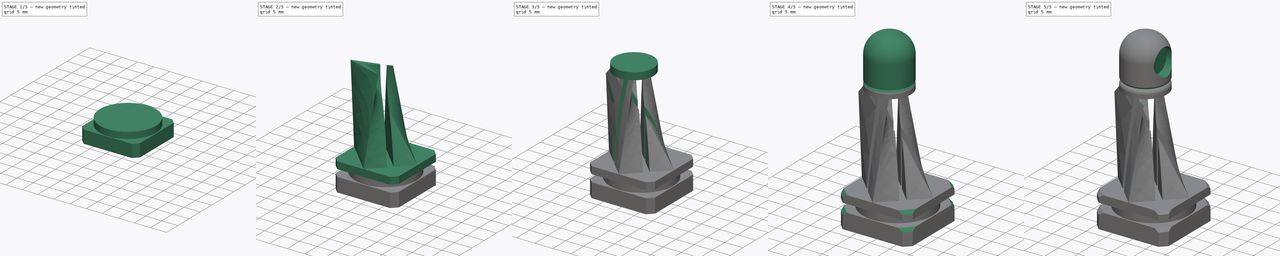
[diagram: build sequence overview — one tinted view per stage of 5, left to right]
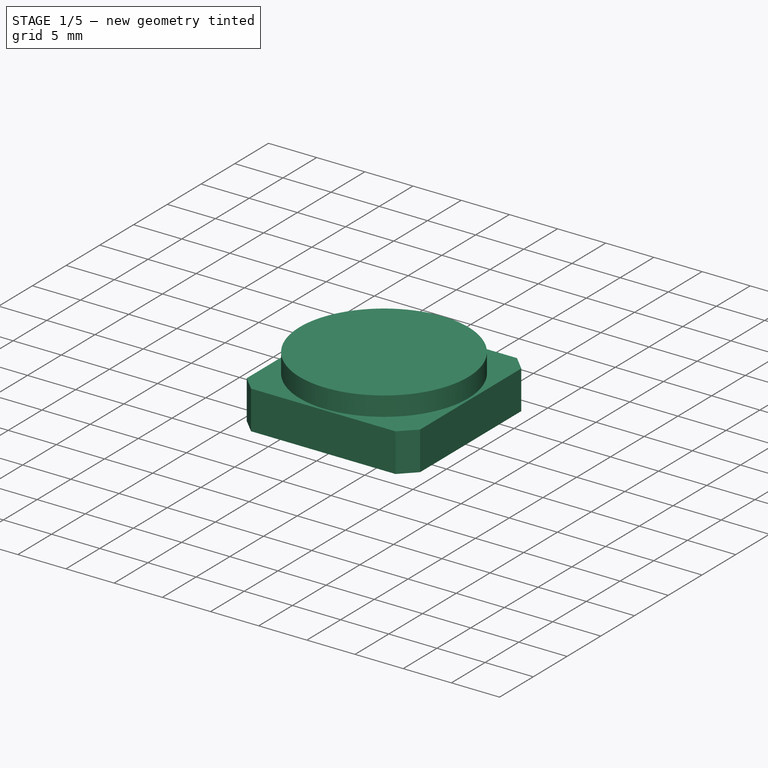
[diagram: stage 1 of 5 — iso view after this stage's code; geometry added in this stage tinted green]
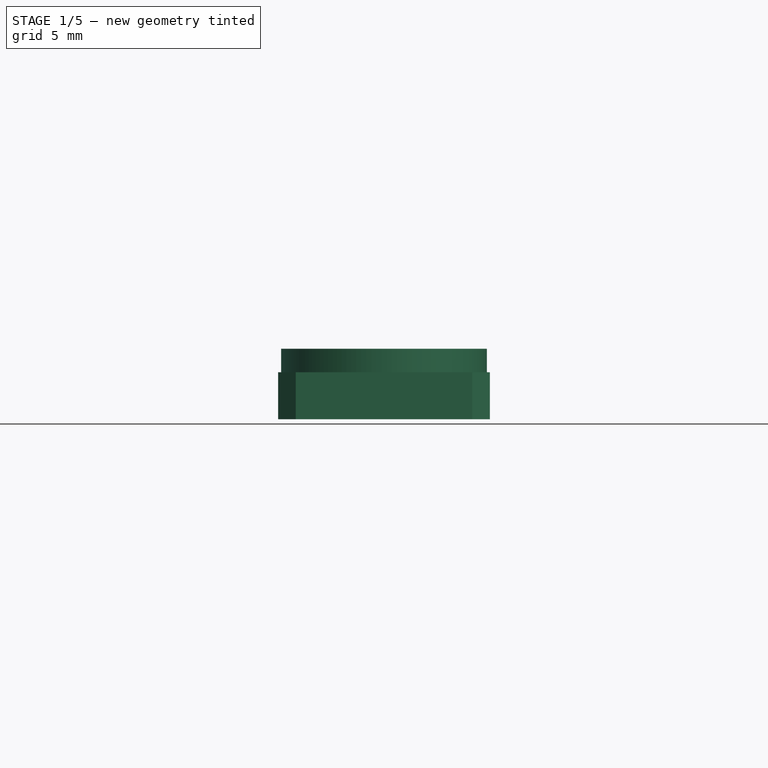
[diagram: stage 1 of 5 — front view after this stage's code; geometry added in this stage tinted green]
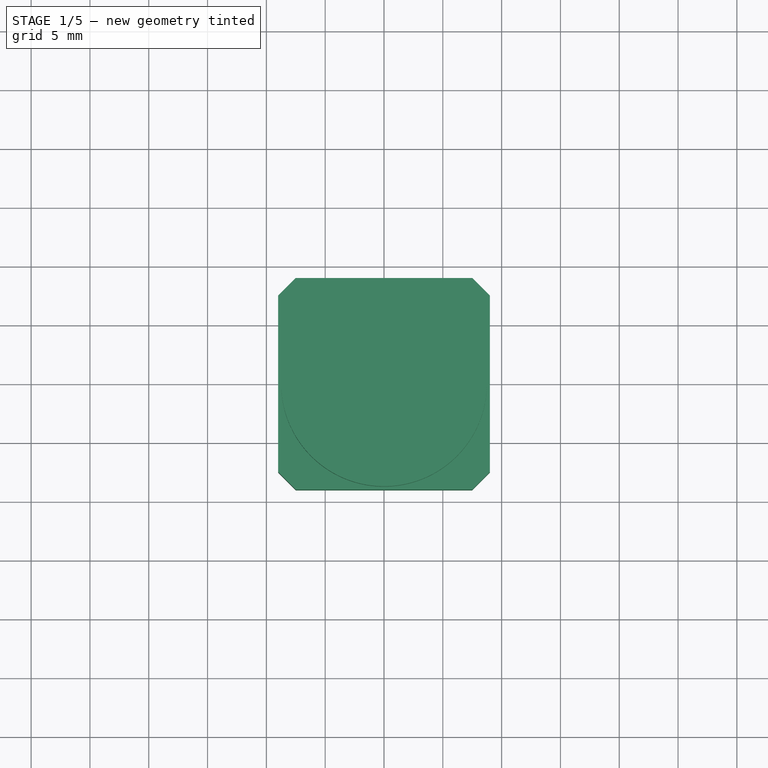
[diagram: stage 1 of 5 — top view after this stage's code; geometry added in this stage tinted green]
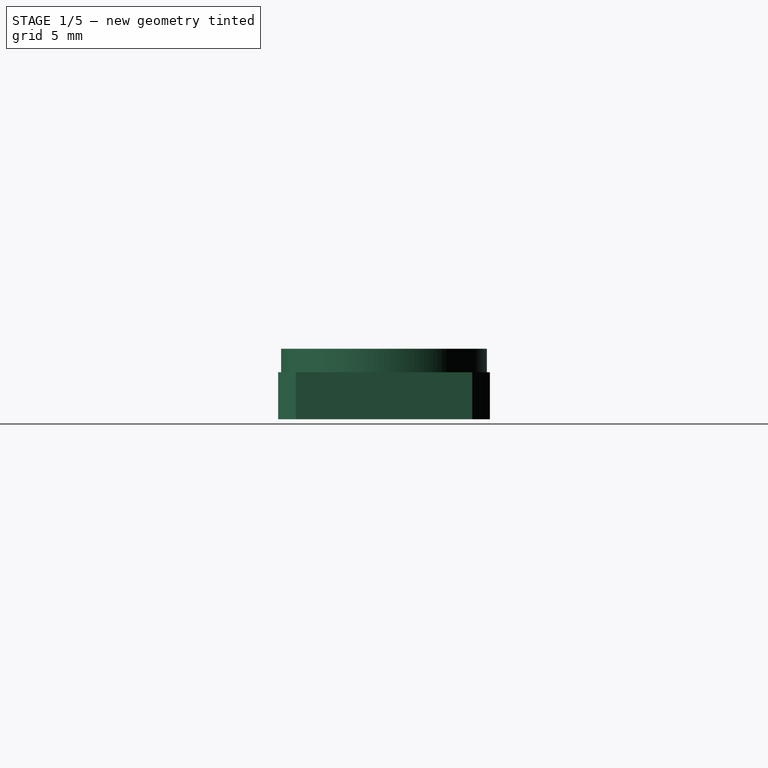
[diagram: stage 1 of 5 — right view after this stage's code; geometry added in this stage tinted green]
FCSTD DOCUMENT  (FreeCAD 0.21R33771 (Git))
Label: Pawn
License: All rights reserved
LicenseURL: http://en.wikipedia.org/wiki/All_rights_reserved
objects: Sketcher::SketchObject×11, PartDesign::Pad×5, PartDesign::Pocket×4, PartDesign::Chamfer×3, PartDesign::Fillet×3, Spreadsheet::Sheet×1, PartDesign::AdditiveLoft×1, PartDesign::Draft×1, PartDesign::Body×1, App::Part×1
note: 46 computed .brp shape members not serialized (recipe doc carries the construction recipe); baked Part::Feature solids carry a one-line shape summary decoded from their .brp

FEATURE [Spreadsheet::Sheet] Spreadsheet  label="p"
  cells = A1='base_hole; B1(base_hole)=16; A2='base_clearance; B2(base_clearance)=0.2; A3='base_depth; B3(base_depth)=4; A4='base_spacer_depth; B4(base_spacer_depth)=2; A5='base_chamfer; B5(base_chamfer)=1.5; A6='base_total_depth; B6(base_total_depth)==B3 + base_spacer_depth * 2; A8='body_height; B8(pawn_body_height)=30; A10='base_wall; B10(base_wall)=2; A12='loft_top; B12(loft_top)=2; A14='platform_diameter; B14(platform_diameter)=10.8; A15='platform_offset; B15(platform_offset)=2.09
FEATURE [Sketcher::SketchObject] Sketch
  FullyConstrained = true
  MapMode = 5
  Support = -> [XY_Plane001]
  expr: Constraints[10] = <<p>>.base_hole + Spreadsheet.base_wall
  expr: Constraints[11] = <<p>>.base_hole + Spreadsheet.base_wall
  expr: Constraints[1] = <<p>>.base_hole + <<p>>.base_clearance
  sketch-geometry (5):
    g0: Circle CenterX=0 CenterY=0 CenterZ=0 NormalX=0 NormalY=0 NormalZ=1 AngleXU=0 Radius=8.1
    g1: LineSegment StartX=-9 StartY=9 StartZ=0 EndX=9 EndY=9 EndZ=0
    g2: LineSegment StartX=9 StartY=9 StartZ=0 EndX=9 EndY=-9 EndZ=0
    g3: LineSegment StartX=9 StartY=-9 StartZ=0 EndX=-9 EndY=-9 EndZ=0
    g4: LineSegment StartX=-9 StartY=-9 StartZ=0 EndX=-9 EndY=9 EndZ=0
  constraints (13):
    c: Coincident(g0,g-1)
    c: Diameter(g0) = 16.2
    c: Coincident(g1,g2)
    c: Coincident(g2,g3)
    c: Coincident(g3,g4)
    c: Coincident(g4,g1)
    c: Horizontal(g1)
    c: Horizontal(g3)
    c: Vertical(g2)
    c: Vertical(g4)
    c: DistanceY(g4,g4) = 18
    c: DistanceX(g1,g1) = 18
    c: Symmetric(g1,g3,g0)
FEATURE [PartDesign::Pad] Pad  label="BasePad"
  Direction = (0,0,1)
  Length = 4
  Length2 = 10
  Profile = -> Sketch
  ReferenceAxis = -> Sketch [N_Axis]
  Type = 0
  expr: Length = <<p>>.base_depth
FEATURE [PartDesign::Chamfer] Chamfer  label="BasePadChamfer"
  Angle = 45
  Base = -> Pad [Edge8,Edge5,Edge2,Edge1]
  BaseFeature = -> Pad
  ChamferType = 0
  FlipDirection = false
  Size = 1.5
  Size2 = 1
  SupportTransform = false
  UseAllEdges = false
  expr: Size = <<p>>.base_chamfer
FEATURE [Sketcher::SketchObject] Sketch001
  FullyConstrained = true
  MapMode = 5
  Placement = pos=(0,0,4) rot=(0,0,1;0rad)
  Support = -> [Chamfer]
  expr: Constraints[1] = <<p>>.base_hole + 1.5
  sketch-geometry (1):
    g0: Circle CenterX=0 CenterY=0 CenterZ=0 NormalX=0 NormalY=0 NormalZ=1 AngleXU=0 Radius=8.75
  constraints (2):
    c: Coincident(g0,g-1)
    c: Diameter(g0) = 17.5
FEATURE [PartDesign::Pad] Pad001  label="BasePadTopper"
  BaseFeature = -> Chamfer
  Direction = (0,0,1)
  Length = 2
  Length2 = 10
  Profile = -> Sketch001
  ReferenceAxis = -> Sketch001 [N_Axis]
  Type = 0
  expr: Length = <<p>>.base_spacer_depth
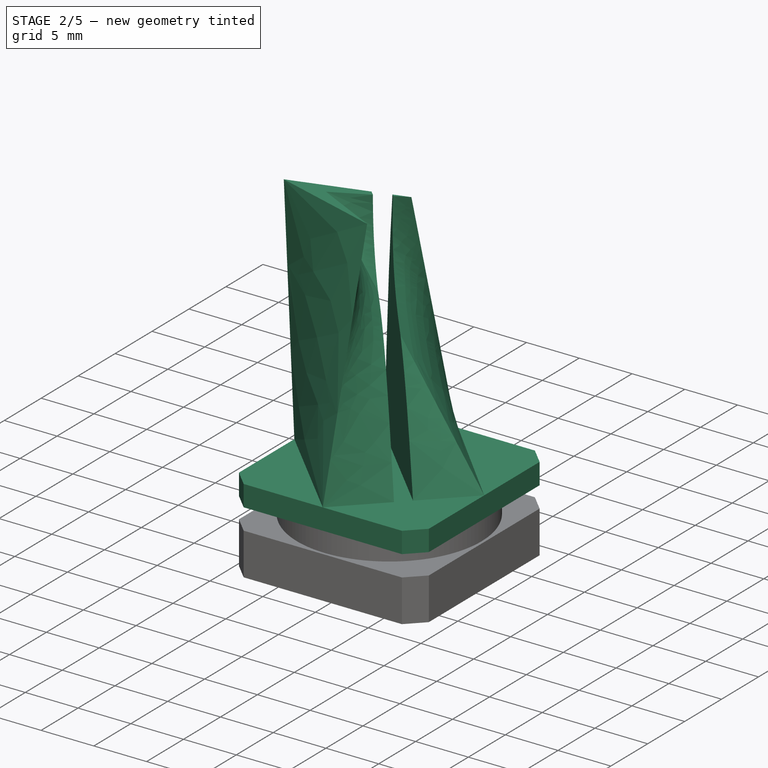
[diagram: stage 2 of 5 — iso view after this stage's code; geometry added in this stage tinted green]
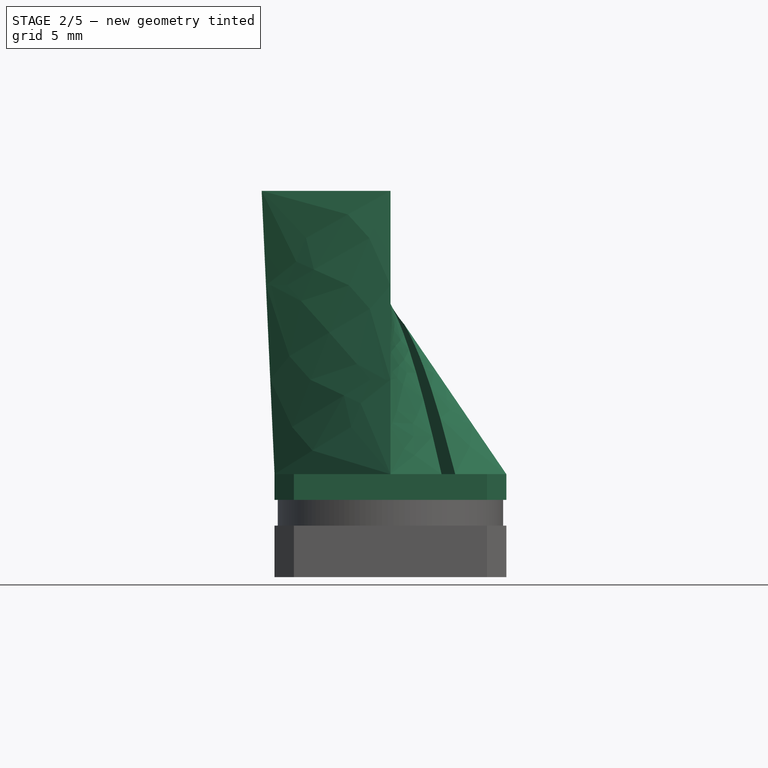
[diagram: stage 2 of 5 — front view after this stage's code; geometry added in this stage tinted green]
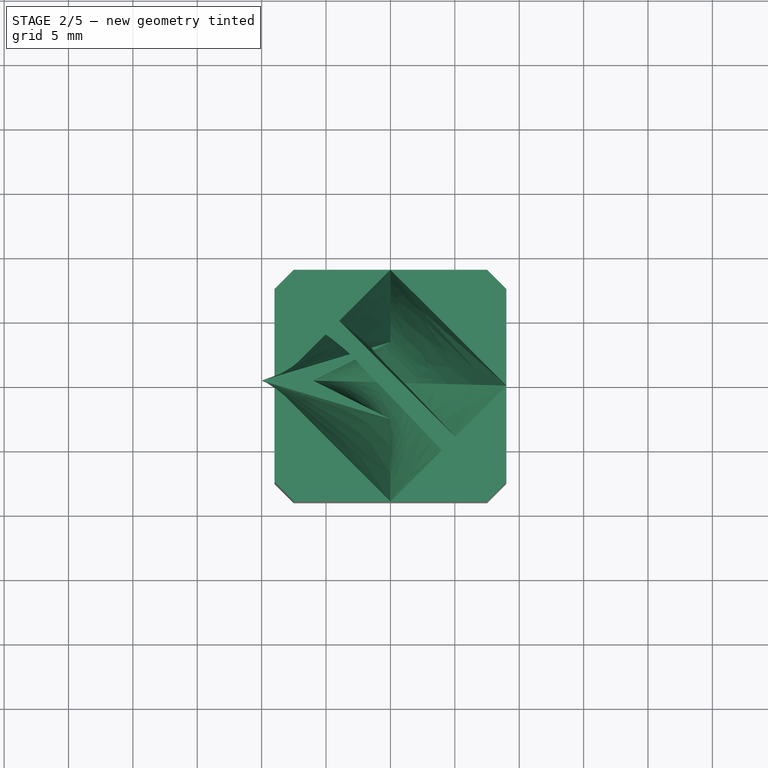
[diagram: stage 2 of 5 — top view after this stage's code; geometry added in this stage tinted green]
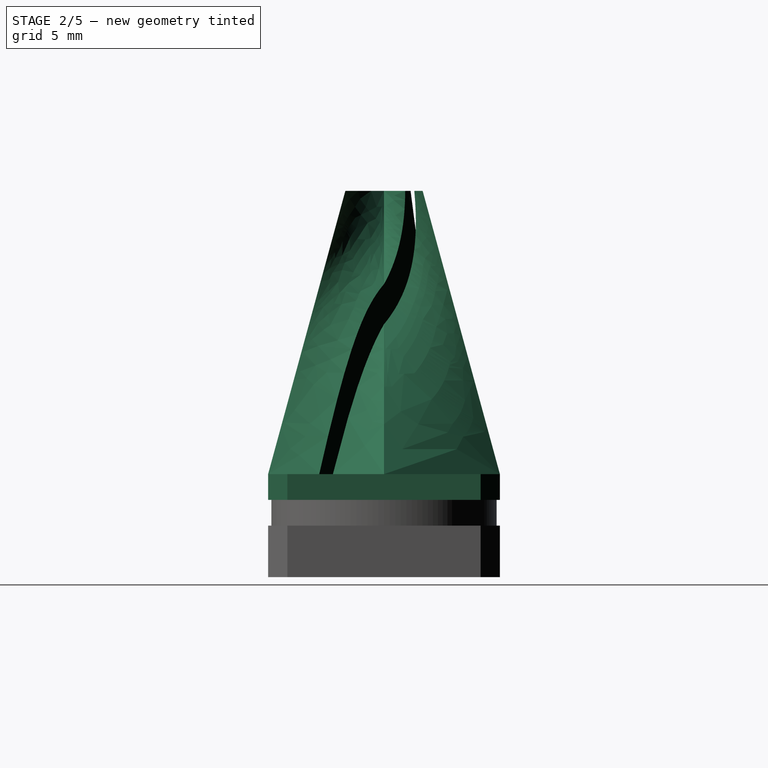
[diagram: stage 2 of 5 — right view after this stage's code; geometry added in this stage tinted green]
FEATURE [Sketcher::SketchObject] Sketch002
  FullyConstrained = true
  MapMode = 5
  Placement = pos=(0,0,6) rot=(0,0,1;0rad)
  Support = -> [Pad001]
  expr: Constraints[8] = <<p>>.base_hole + Spreadsheet.base_wall
  expr: Constraints[9] = <<p>>.base_hole + Spreadsheet.base_wall
  sketch-geometry (4):
    g0: LineSegment StartX=-9 StartY=9 StartZ=0 EndX=9 EndY=9 EndZ=0
    g1: LineSegment StartX=9 StartY=9 StartZ=0 EndX=9 EndY=-9 EndZ=0
    g2: LineSegment StartX=9 StartY=-9 StartZ=0 EndX=-9 EndY=-9 EndZ=0
    g3: LineSegment StartX=-9 StartY=-9 StartZ=0 EndX=-9 EndY=9 EndZ=0
  constraints (11):
    c: Coincident(g0,g1)
    c: Coincident(g1,g2)
    c: Coincident(g2,g3)
    c: Coincident(g3,g0)
    c: Horizontal(g0)
    c: Horizontal(g2)
    c: Vertical(g1)
    c: Vertical(g3)
    c: DistanceY(g3,g3) = 18
    c: DistanceX(g0,g0) = 18
    c: Symmetric(g0,g2,g-1)
FEATURE [PartDesign::Pad] Pad002  label="BaseBodyBase"
  BaseFeature = -> Pad001
  Direction = (0,0,1)
  Length = 2
  Length2 = 10
  Profile = -> Sketch002
  ReferenceAxis = -> Sketch002 [N_Axis]
  Type = 0
  expr: Length = <<p>>.base_spacer_depth
FEATURE [PartDesign::Chamfer] Chamfer001  label="BaseBodyBaseChamfer"
  Angle = 45
  Base = -> Pad002 [Edge8,Edge2,Edge1,Edge5]
  BaseFeature = -> Pad002
  ChamferType = 0
  FlipDirection = false
  Size = 1.5
  Size2 = 1
  SupportTransform = false
  UseAllEdges = false
  expr: Size = <<p>>.base_chamfer
FEATURE [Sketcher::SketchObject] Sketch003
  FullyConstrained = true
  MapMode = 5
  Placement = pos=(0,0,8) rot=(0,0,1;0rad)
  Support = -> [Chamfer001]
  expr: Constraints[10] = (<<p>>.base_hole + Spreadsheet.base_wall) / 2
  expr: Constraints[11] = <<p>>.base_hole + Spreadsheet.base_wall
  expr: Constraints[8] = (<<p>>.base_hole + Spreadsheet.base_wall) / 2
  expr: Constraints[9] = <<p>>.base_hole + Spreadsheet.base_wall
  sketch-geometry (4):
    g0: LineSegment StartX=0 StartY=9 StartZ=0 EndX=-9 EndY=0 EndZ=0
    g1: LineSegment StartX=-9 StartY=0 StartZ=0 EndX=0 EndY=-9 EndZ=0
    g2: LineSegment StartX=0 StartY=-9 StartZ=0 EndX=9 EndY=0 EndZ=0
    g3: LineSegment StartX=9 StartY=0 StartZ=0 EndX=0 EndY=9 EndZ=0
  constraints (12):
    c: PointOnObject(g0,g-2)
    c: PointOnObject(g0,g-1)
    c: Coincident(g0,g1)
    c: PointOnObject(g1,g-2)
    c: Coincident(g1,g2)
    c: PointOnObject(g2,g-1)
    c: Coincident(g2,g3)
    c: Coincident(g3,g0)
    c: DistanceX(g0,g-1) = 9
    c: DistanceX(g0,g2) = 18
    c: DistanceY(g-1,g0) = 9
    c: DistanceY(g1,g0) = 18
FEATURE [Sketcher::SketchObject] Sketch004
  FullyConstrained = true
  MapMode = 5
  Placement = pos=(0,0,30) rot=(0,0,1;0rad)
  expr: .Placement.Base.z = <<p>>.pawn_body_height
  expr: Constraints[10] = <<p>>.loft_top * 3
  expr: Constraints[11] = <<p>>.loft_top * 3 / 2
  expr: Constraints[8] = <<p>>.loft_top * 2
  expr: Constraints[9] = <<p>>.loft_top * 3
  sketch-geometry (4):
    g0: LineSegment StartX=0 StartY=3 StartZ=0 EndX=-10 EndY=0 EndZ=0
    g1: LineSegment StartX=-10 StartY=0 StartZ=0 EndX=0 EndY=-3 EndZ=0
    g2: LineSegment StartX=0 StartY=-3 StartZ=0 EndX=-6 EndY=0 EndZ=0
    g3: LineSegment StartX=-6 StartY=0 StartZ=0 EndX=0 EndY=3 EndZ=0
  constraints (12):
    c: PointOnObject(g0,g-2)
    c: PointOnObject(g0,g-1)
    c: Coincident(g0,g1)
    c: PointOnObject(g1,g-2)
    c: Coincident(g1,g2)
    c: PointOnObject(g2,g-1)
    c: Coincident(g2,g3)
    c: Coincident(g3,g0)
    c: DistanceX(g0,g2) = 4
    c: DistanceY(g1,g0) = 6
    c: DistanceX(g2,g-1) = 6
    c: DistanceY(g-1,g0) = 3
FEATURE [PartDesign::AdditiveLoft] AdditiveLoft
  BaseFeature = -> Chamfer001
  Closed = false
  Profile = -> Sketch003
  Ruled = false
  Sections = -> [Sketch004]
FEATURE [Sketcher::SketchObject] Sketch005
  FullyConstrained = true
  MapMode = 5
  Placement = pos=(-8.25,8.25,0) rot=(-0.281085,0.678598,0.678598;3.68962rad)
  Support = -> [AdditiveLoft]
  expr: Constraints[10] = <<p>>.base_total_depth
  expr: Constraints[11] = <<p>>.pawn_body_height - <<p>>.base_total_depth
  expr: Constraints[8] = <<p>>.base_chamfer
  expr: Constraints[9] = <<p>>.base_chamfer / 2
  sketch-geometry (4):
    g0: LineSegment StartX=-0.75 StartY=30 StartZ=0 EndX=0.75 EndY=30 EndZ=0
    g1: LineSegment StartX=0.75 StartY=30 StartZ=0 EndX=0.75 EndY=8 EndZ=0
    g2: LineSegment StartX=0.75 StartY=8 StartZ=0 EndX=-0.75 EndY=8 EndZ=0
    g3: LineSegment StartX=-0.75 StartY=8 StartZ=0 EndX=-0.75 EndY=30 EndZ=0
  constraints (12):
    c: Coincident(g0,g1)
    c: Coincident(g1,g2)
    c: Coincident(g2,g3)
    c: Coincident(g3,g0)
    c: Horizontal(g0)
    c: Horizontal(g2)
    c: Vertical(g1)
    c: Vertical(g3)
    c: DistanceX(g2,g2) = 1.5
    c: DistanceX(g2,g-1) = 0.75
    c: DistanceY(g-1,g2) = 8
    c: DistanceY(g1,g1) = 22
FEATURE [PartDesign::Pocket] Pocket  label="SidePocket1"
  BaseFeature = -> AdditiveLoft
  Direction = (0.707107,-0.707107,0)
  Length = 5
  Length2 = 5
  Profile = -> Sketch005
  ReferenceAxis = -> Sketch005 [N_Axis]
  Type = 1
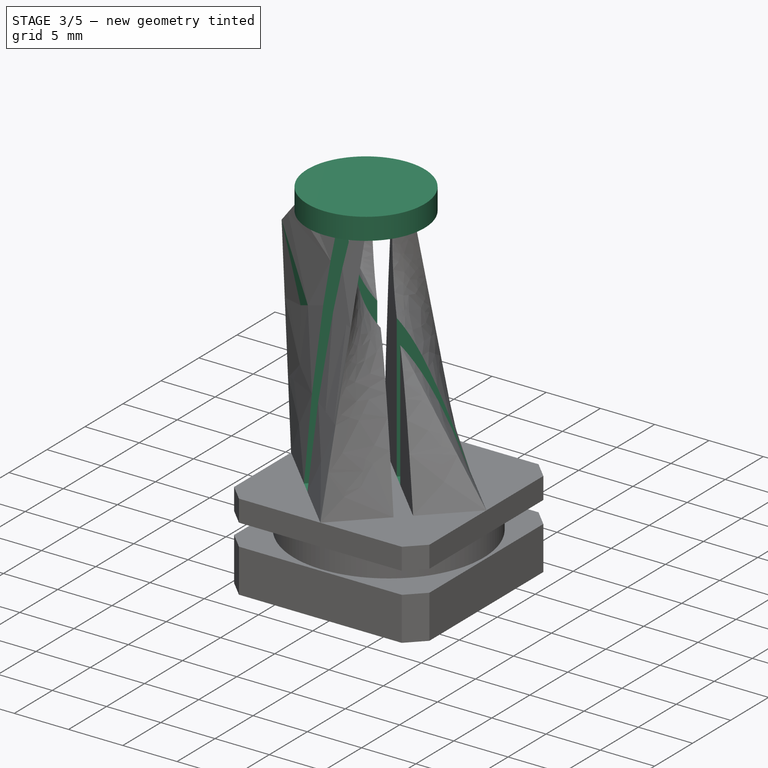
[diagram: stage 3 of 5 — iso view after this stage's code; geometry added in this stage tinted green]
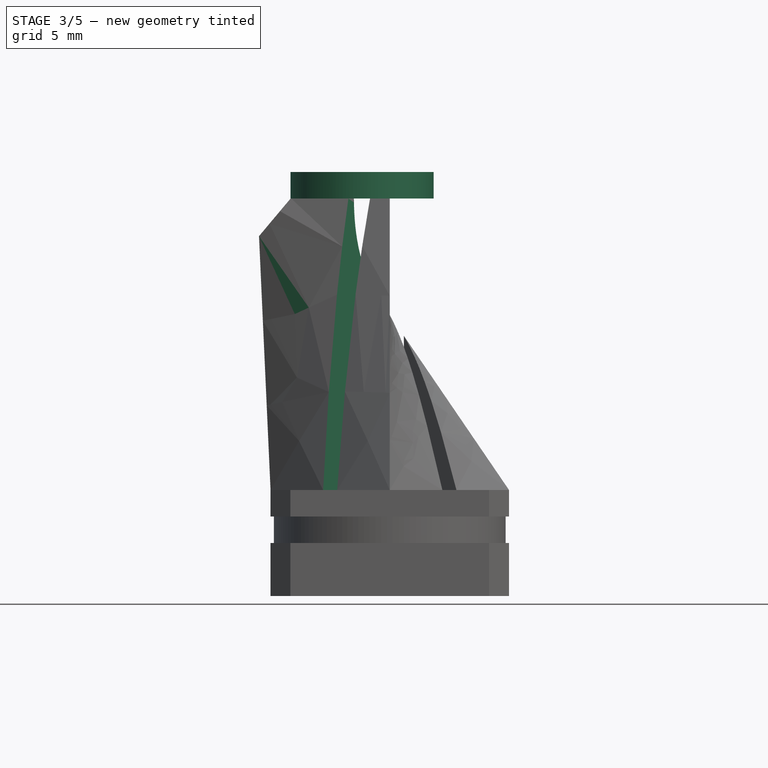
[diagram: stage 3 of 5 — front view after this stage's code; geometry added in this stage tinted green]
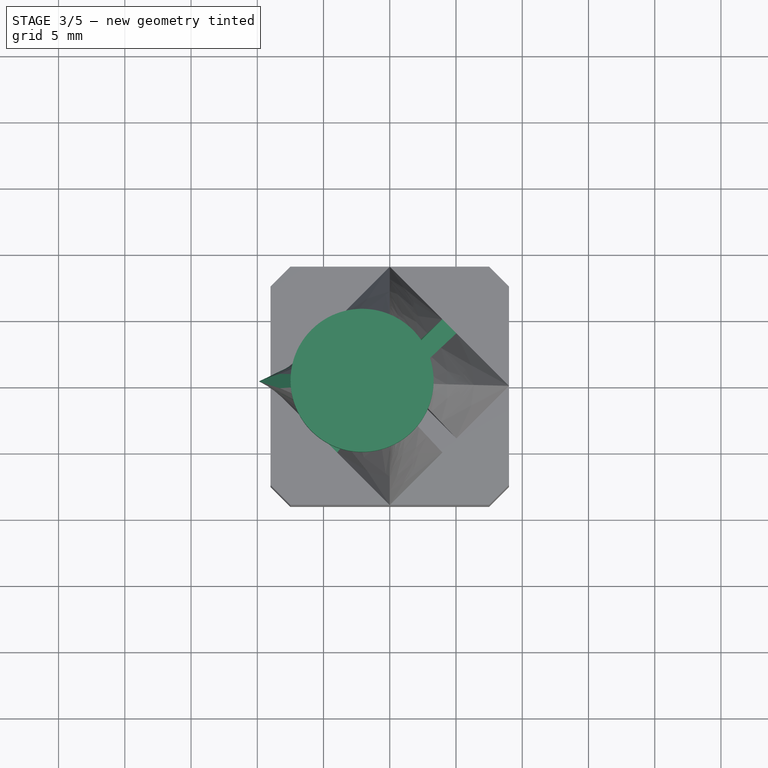
[diagram: stage 3 of 5 — top view after this stage's code; geometry added in this stage tinted green]
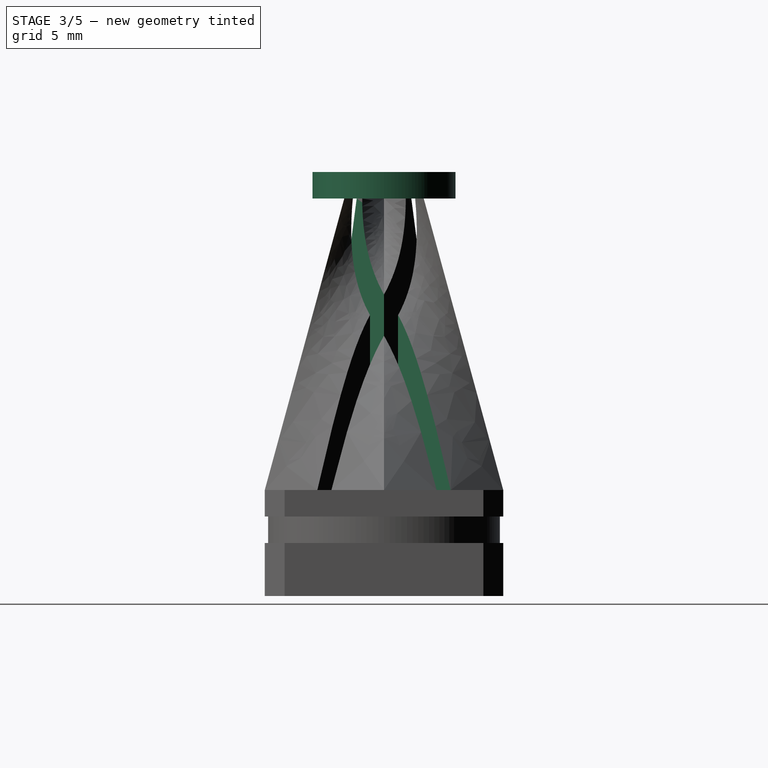
[diagram: stage 3 of 5 — right view after this stage's code; geometry added in this stage tinted green]
FEATURE [Sketcher::SketchObject] Sketch006
  FullyConstrained = true
  MapMode = 5
  Placement = pos=(-8.25,-8.25,0) rot=(0.862856,-0.357407,-0.357407;1.71777rad)
  Support = -> [AdditiveLoft]
  expr: Constraints[10] = <<p>>.base_total_depth
  expr: Constraints[11] = <<p>>.pawn_body_height - <<p>>.base_total_depth
  expr: Constraints[8] = <<p>>.base_chamfer
  expr: Constraints[9] = <<p>>.base_chamfer / 2
  sketch-geometry (4):
    g0: LineSegment StartX=-0.75 StartY=30 StartZ=0 EndX=0.75 EndY=30 EndZ=0
    g1: LineSegment StartX=0.75 StartY=30 StartZ=0 EndX=0.75 EndY=8 EndZ=0
    g2: LineSegment StartX=0.75 StartY=8 StartZ=0 EndX=-0.75 EndY=8 EndZ=0
    g3: LineSegment StartX=-0.75 StartY=8 StartZ=0 EndX=-0.75 EndY=30 EndZ=0
  constraints (12):
    c: Coincident(g0,g1)
    c: Coincident(g1,g2)
    c: Coincident(g2,g3)
    c: Coincident(g3,g0)
    c: Horizontal(g0)
    c: Horizontal(g2)
    c: Vertical(g1)
    c: Vertical(g3)
    c: DistanceX(g2,g2) = 1.5
    c: DistanceX(g2,g-1) = 0.75
    c: DistanceY(g-1,g2) = 8
    c: DistanceY(g1,g1) = 22
FEATURE [PartDesign::Pocket] Pocket001  label="SidePocket2"
  BaseFeature = -> Pocket
  Direction = (0.707107,0.707107,0)
  Length = 5
  Length2 = 5
  Profile = -> Sketch006
  ReferenceAxis = -> Sketch006 [N_Axis]
  Type = 1
FEATURE [Sketcher::SketchObject] Sketch007
  FullyConstrained = true
  MapMode = 5
  Placement = pos=(0,0,30) rot=(0,0,1;0rad)
  Support = -> [Pocket001]
  expr: Constraints[1] = <<p>>.platform_diameter
  expr: Constraints[2] = <<p>>.platform_offset
  sketch-geometry (1):
    g0: Circle CenterX=-2.09 CenterY=0 CenterZ=0 NormalX=0 NormalY=0 NormalZ=1 AngleXU=0 Radius=5.4
  constraints (3):
    c: PointOnObject(g0,g-1)
    c: Diameter(g0) = 10.8
    c: DistanceX(g0,g-1) = 2.09
FEATURE [PartDesign::Pad] Pad003  label="PlatformPad"
  BaseFeature = -> Pocket001
  Direction = (0,0,1)
  Length = 2
  Length2 = 10
  Profile = -> Sketch007
  ReferenceAxis = -> Sketch007 [N_Axis]
  Type = 0
FEATURE [PartDesign::Draft] Draft  label="RearDraft"
  Angle = 50
  Base = -> Pad003 [Face49]
  BaseFeature = -> Pad003
  SupportTransform = false
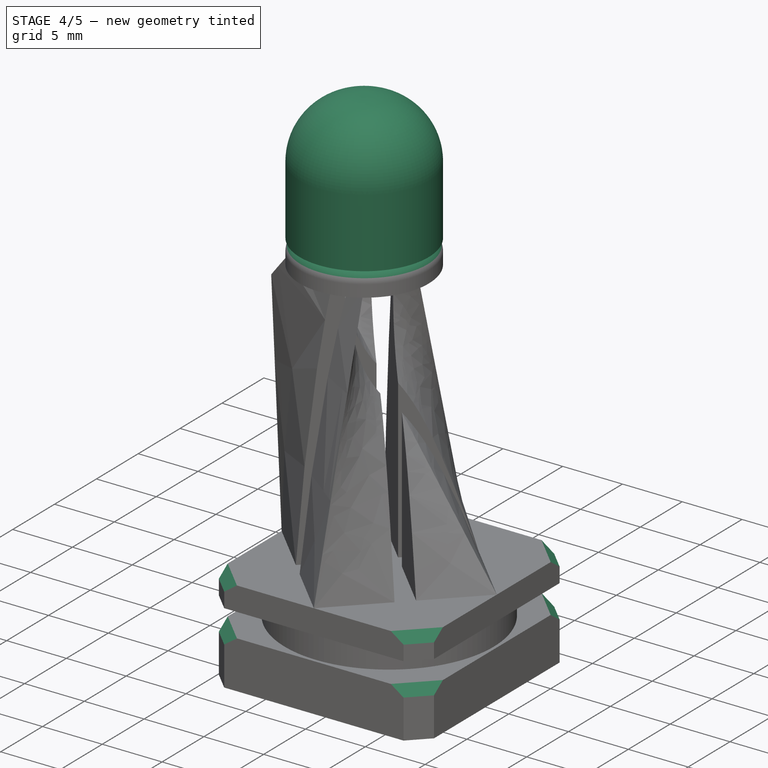
[diagram: stage 4 of 5 — iso view after this stage's code; geometry added in this stage tinted green]
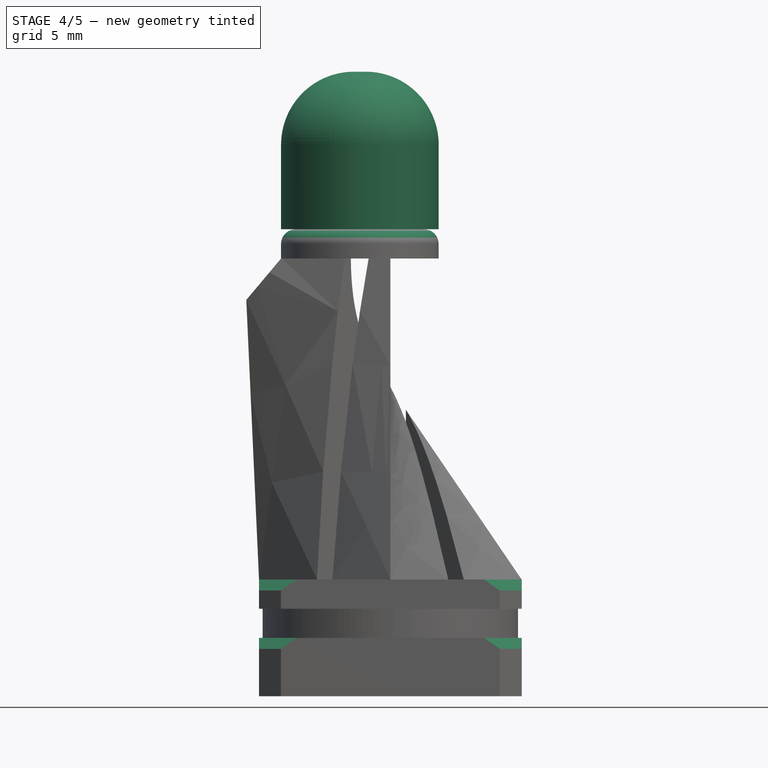
[diagram: stage 4 of 5 — front view after this stage's code; geometry added in this stage tinted green]
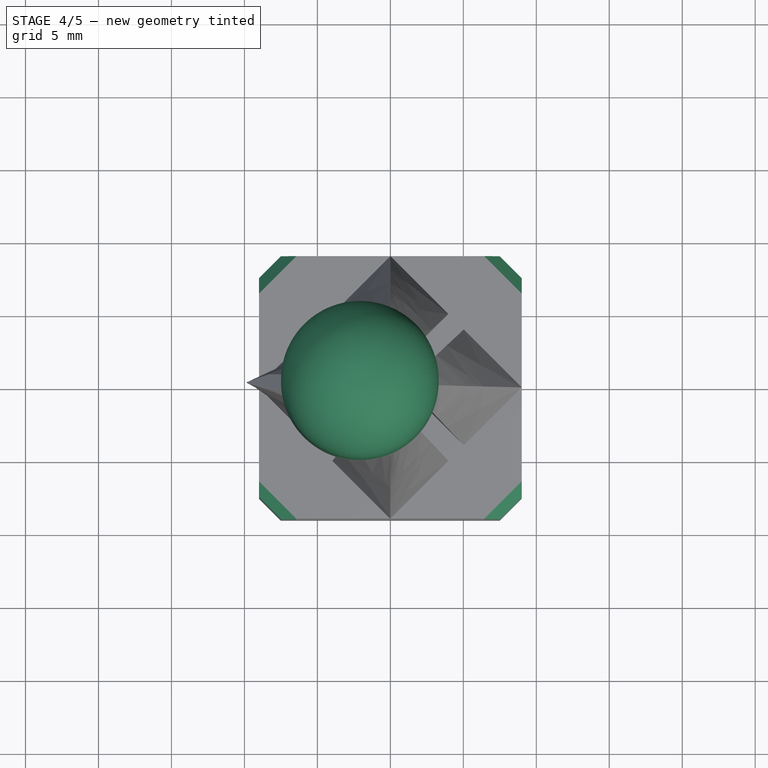
[diagram: stage 4 of 5 — top view after this stage's code; geometry added in this stage tinted green]
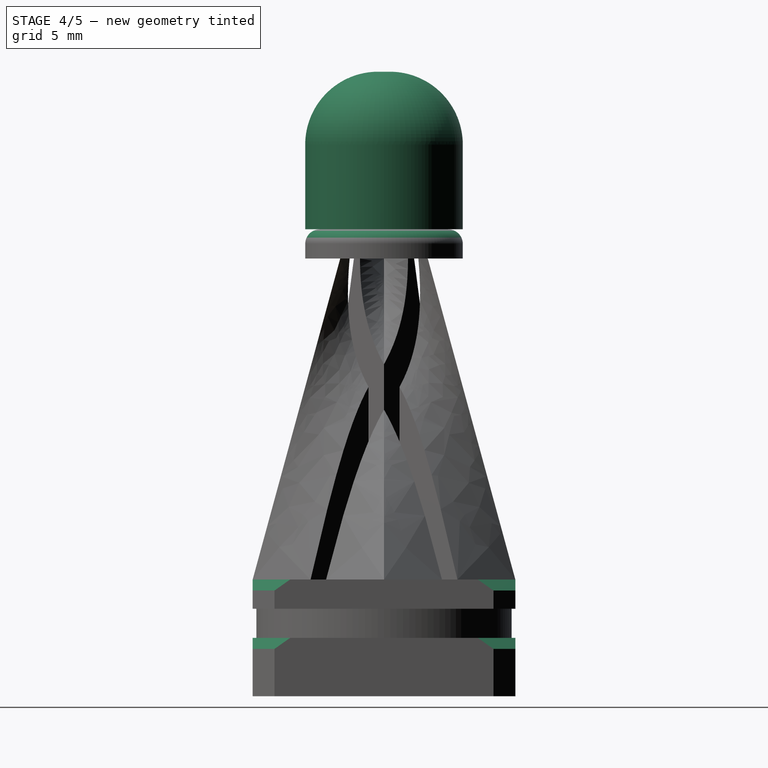
[diagram: stage 4 of 5 — right view after this stage's code; geometry added in this stage tinted green]
FEATURE [PartDesign::Chamfer] Chamfer002  label="BaseChamfers"
  Angle = 45
  Base = -> Draft [Edge34,Edge38,Edge20,Edge16,Edge67,Edge71,Edge72,Edge68]
  BaseFeature = -> Draft
  ChamferType = 0
  FlipDirection = false
  Size = 0.75
  Size2 = 1
  SupportTransform = false
  UseAllEdges = false
FEATURE [PartDesign::Fillet] Fillet  label="PlatformChamfer"
  Base = -> Chamfer002 [Edge159]
  BaseFeature = -> Chamfer002
  Radius = 1
  SupportTransform = false
  UseAllEdges = false
FEATURE [Sketcher::SketchObject] Sketch008
  FullyConstrained = true
  MapMode = 5
  Placement = pos=(0,0,32) rot=(0,0,1;0rad)
  Support = -> [Fillet]
  expr: Constraints[1] = <<p>>.platform_diameter
  expr: Constraints[2] = <<p>>.platform_offset
  sketch-geometry (1):
    g0: Circle CenterX=-2.09 CenterY=0 CenterZ=0 NormalX=0 NormalY=0 NormalZ=1 AngleXU=0 Radius=5.4
  constraints (3):
    c: PointOnObject(g0,g-1)
    c: Diameter(g0) = 10.8
    c: DistanceX(g0,g-1) = 2.09
FEATURE [PartDesign::Pad] Pad004  label="PawnPad"
  BaseFeature = -> Fillet
  Direction = (0,0,1)
  Length = 10.8
  Length2 = 10
  Profile = -> Sketch008
  ReferenceAxis = -> Sketch008 [N_Axis]
  Type = 0
  expr: Length = <<p>>.platform_diameter
FEATURE [PartDesign::Fillet] Fillet001  label="TopFillet"
  Base = -> Pad004 [Edge3]
  BaseFeature = -> Pad004
  Radius = 5
  SupportTransform = false
  UseAllEdges = false
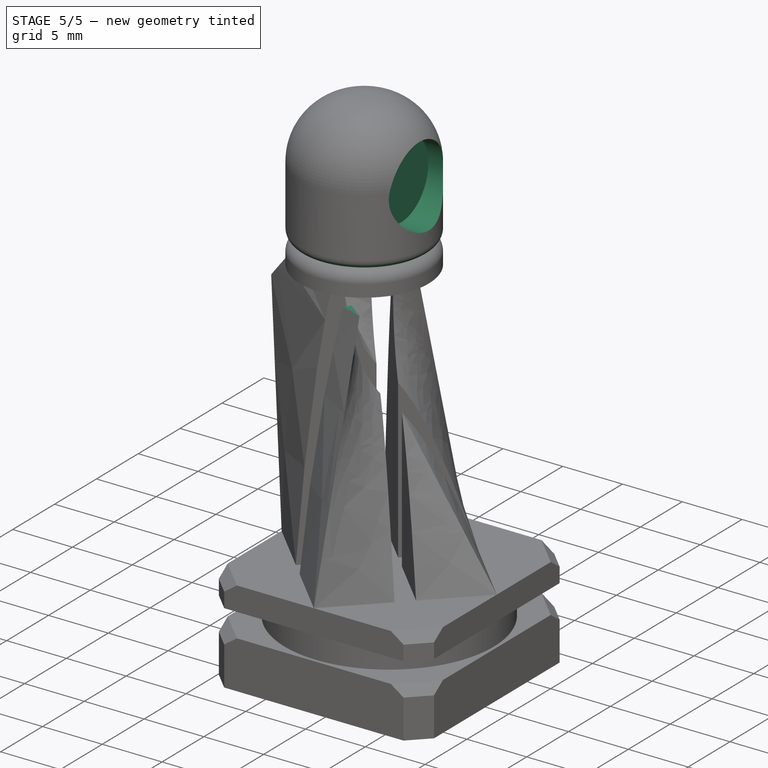
[diagram: stage 5 of 5 — iso view after this stage's code; geometry added in this stage tinted green]
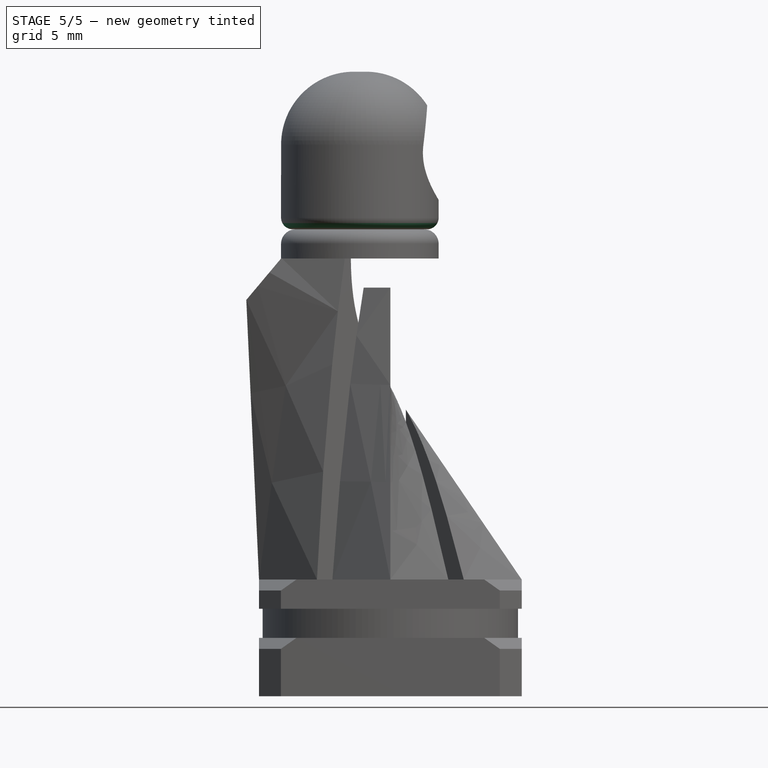
[diagram: stage 5 of 5 — front view after this stage's code; geometry added in this stage tinted green]
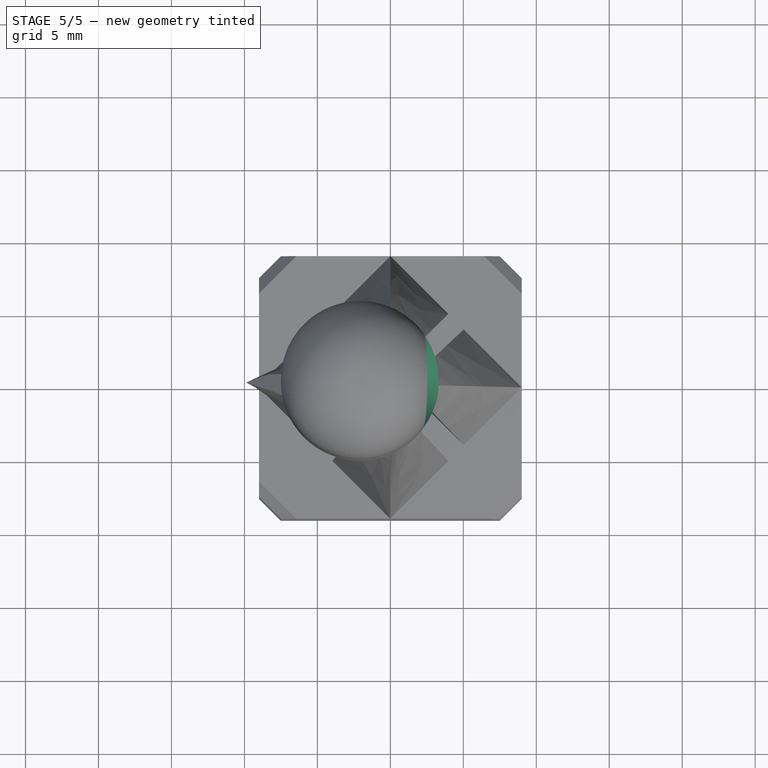
[diagram: stage 5 of 5 — top view after this stage's code; geometry added in this stage tinted green]
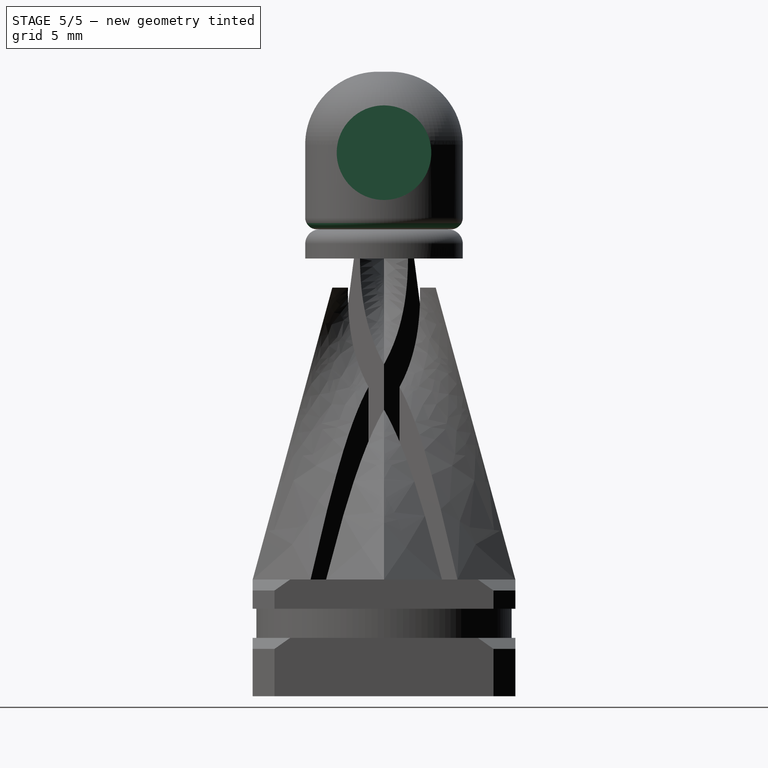
[diagram: stage 5 of 5 — right view after this stage's code; geometry added in this stage tinted green]
FEATURE [PartDesign::Fillet] Fillet002  label="BottomFillet"
  Base = -> Fillet001 [Edge3]
  BaseFeature = -> Fillet001
  Radius = 0.8
  SupportTransform = false
  UseAllEdges = false
FEATURE [Sketcher::SketchObject] Sketch009
  FullyConstrained = true
  MapMode = 5
  Placement = pos=(9,0,0) rot=(0.57735,0.57735,0.57735;2.0944rad)
  Support = -> [Fillet002]
  sketch-geometry (1):
    g0: Circle CenterX=0 CenterY=37.25 CenterZ=0 NormalX=0 NormalY=0 NormalZ=1 AngleXU=0 Radius=3.2395
  constraints (3):
    c: PointOnObject(g0,g-2)
    c: Diameter(g0) = 6.479
    c: DistanceY(g-1,g0) = 37.25
FEATURE [PartDesign::Pocket] Pocket002  label="FacePocket"
  BaseFeature = -> Fillet002
  Direction = (-1,0,0)
  Length = 8
  Length2 = 5
  Profile = -> Sketch009
  ReferenceAxis = -> Sketch009 [N_Axis]
  Type = 0
FEATURE [Sketcher::SketchObject] Sketch010
  FullyConstrained = false
  MapMode = 5
  Placement = pos=(0,-9,0) rot=(1,0,0;1.5708rad)
  Support = -> [Fillet001]
  expr: Constraints[8] = <<p>>.pawn_body_height
  sketch-geometry (4):
    g0: LineSegment StartX=0.546696 StartY=28 StartZ=0 EndX=-1.9533 EndY=28 EndZ=0
    g1: LineSegment StartX=-1.9533 StartY=28 StartZ=0 EndX=-1.9533 EndY=30 EndZ=0
    g2: LineSegment StartX=-1.9533 StartY=30 StartZ=0 EndX=0.546696 EndY=30 EndZ=0
    g3: LineSegment StartX=0.546696 StartY=30 StartZ=0 EndX=0.546696 EndY=28 EndZ=0
  constraints (11):
    c: Coincident(g0,g1)
    c: Coincident(g1,g2)
    c: Coincident(g2,g3)
    c: Coincident(g3,g0)
    c: Horizontal(g0)
    c: Horizontal(g2)
    c: Vertical(g1)
    c: Vertical(g3)
    c: DistanceY(g-1,g1) = 30
    c: DistanceX(g2,g2) = 2.5
    c: DistanceY(g3,g3) = 2
FEATURE [PartDesign::Pocket] Pocket003
  BaseFeature = -> Pocket002
  Direction = (0,1,-2e-16)
  Length = 5
  Length2 = 5
  Profile = -> Sketch010
  ReferenceAxis = -> Sketch010 [N_Axis]
  Type = 1
FEATURE [PartDesign::Body] Body  label="PawnBody"
  Group = -> [Sketch,Pad,Chamfer,Sketch001,Pad001,Sketch002,Pad002,Chamfer001,Sketch003,Sketch004,AdditiveLoft,Sketch005,Pocket,Sketch006,Pocket001,Sketch007,Pad003,Draft,Chamfer002,Fillet,Sketch008,Pad004,Fillet001,Fillet002,Sketch009,Pocket002,Sketch010,Pocket003]
  Origin = -> Origin001
  Tip = -> Pocket003
FEATURE [App::Part] Part  label="PawnPart"
  Group = -> [Body]
  Origin = -> Origin
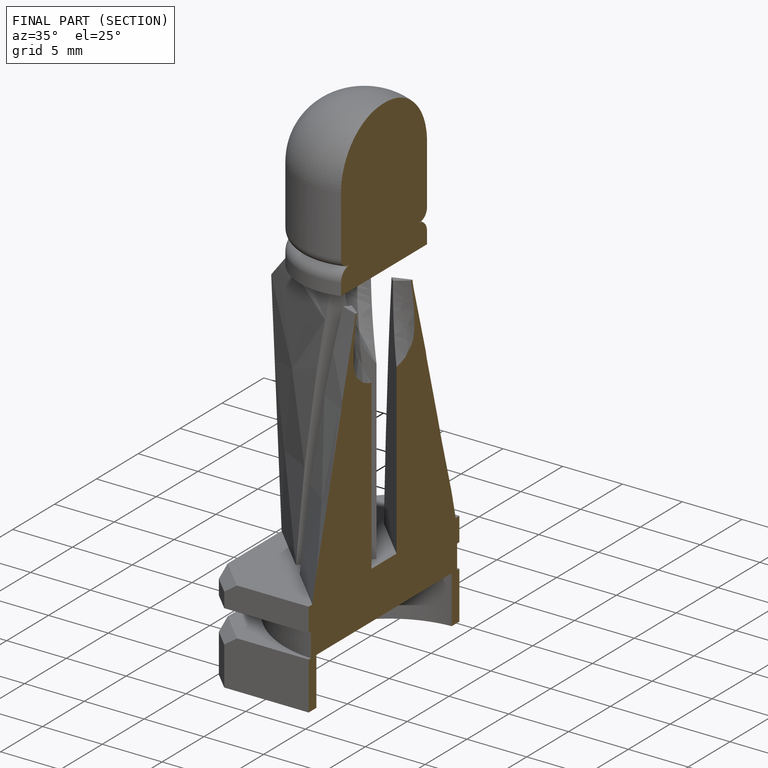
[diagram: finished part — half-section view (interior)]
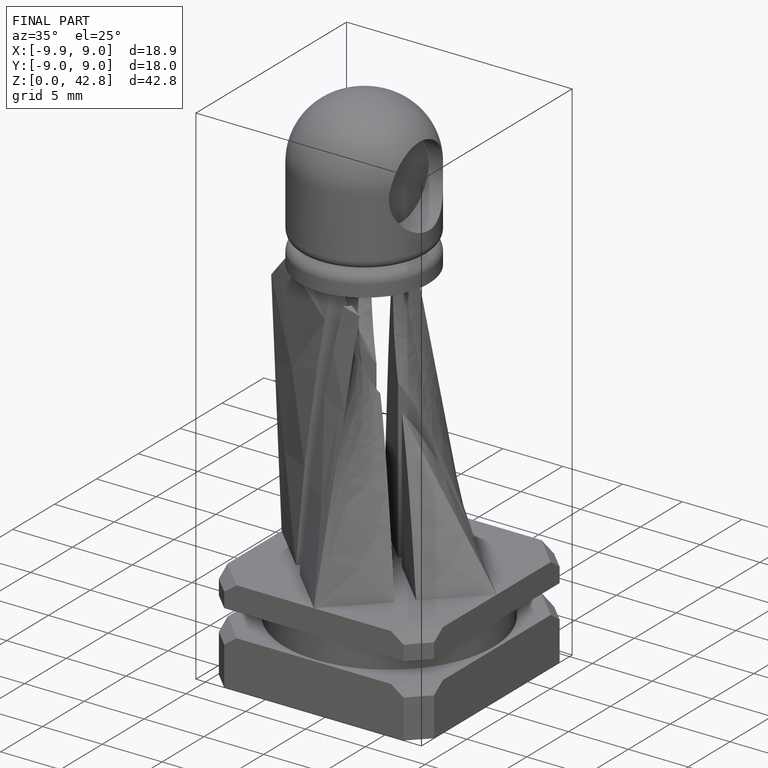
[diagram: finished part — iso view with bounding-box wireframe]
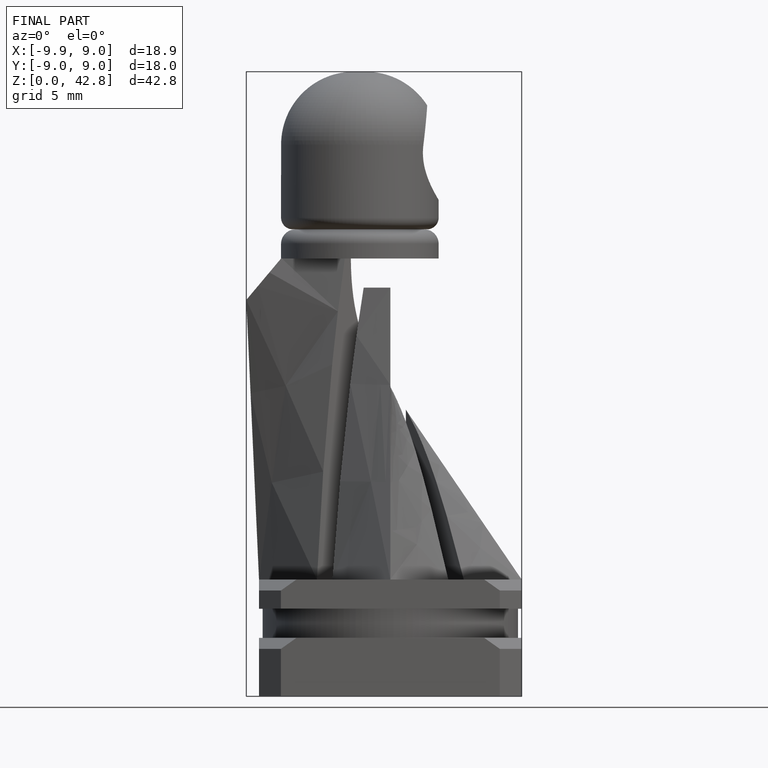
[diagram: finished part — front view with bounding-box wireframe]
